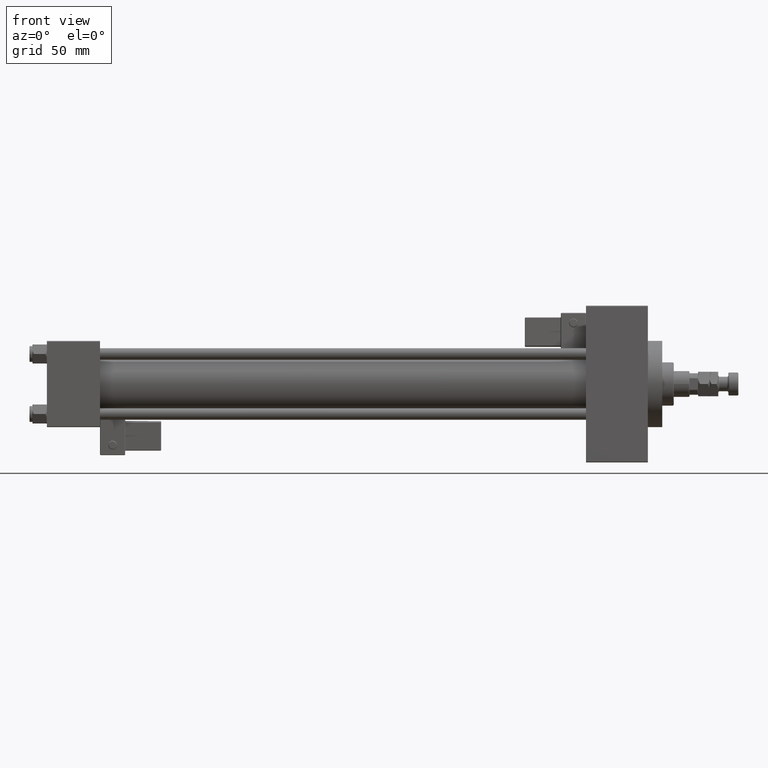
[diagram: clean part render]
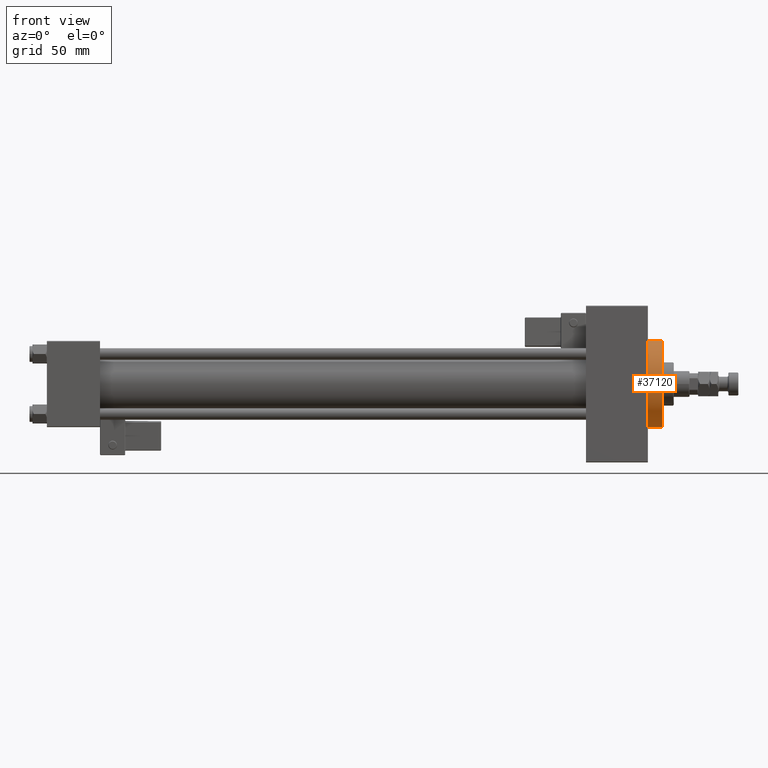
[diagram: same view with one face highlighted and labeled with its STEP entity id]
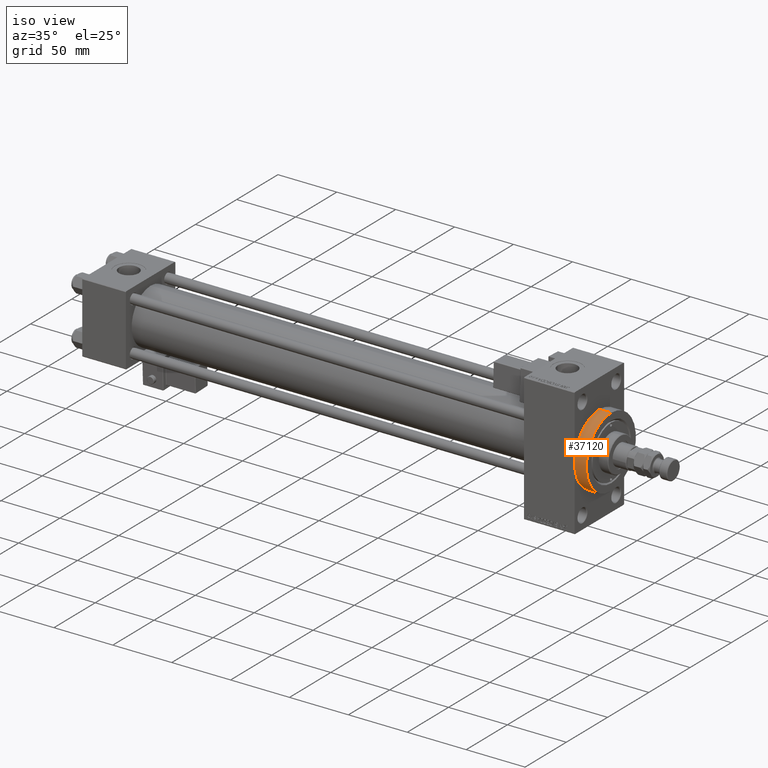
[diagram: same view with one face highlighted and labeled with its STEP entity id]
A machine part, front view. The second image highlights one B-rep face of the part: STEP entity #37120.
A second angle (iso view) of the same face is appended — the face is thin or edge-on in the first view.
In plain terms, the highlighted cylindrical surface (partial cylindrical patch) has radius 30 mm, axis along (-1, -0, -0).
Its self-contained STEP definition (entity closure, byte-faithful):
#1211 = CARTESIAN_POINT ( 'NONE',  ( 418.0000000000000000, 0.000000000000000000, 30.00000000000000000 ) ) ;
#1281 = CARTESIAN_POINT ( 'NONE',  ( 418.0000000000000000, -30.00000000000000000, 0.000000000000000000 ) ) ;
#3603 = AXIS2_PLACEMENT_3D ( 'NONE', #40804, #40288, #47810 ) ;
#4611 = CYLINDRICAL_SURFACE ( 'NONE', #20481, 30.00000000000000000 ) ;
#5269 = CIRCLE ( 'NONE', #3603, 30.00000000000000000 ) ;
#6027 = EDGE_CURVE ( 'NONE', #22058, #34653, #35540, .T. ) ;
#6370 = DIRECTION ( 'NONE',  ( 1.000000000000000000, 0.000000000000000000, 0.000000000000000000 ) ) ;
#6889 = DIRECTION ( 'NONE',  ( 0.000000000000000000, 0.000000000000000000, -1.000000000000000000 ) ) ;
#6957 = VECTOR ( 'NONE', #27839, 1000.000000000000000 ) ;
#8018 = VERTEX_POINT ( 'NONE', #1281 ) ;
#8258 = DIRECTION ( 'NONE',  ( 0.000000000000000000, 0.000000000000000000, 1.000000000000000000 ) ) ;
#8368 = ORIENTED_EDGE ( 'NONE', *, *, #45684, .T. ) ;
#10335 = ORIENTED_EDGE ( 'NONE', *, *, #6027, .F. ) ;
#13654 = VECTOR ( 'NONE', #42533, 1000.000000000000000 ) ;
#14774 = CARTESIAN_POINT ( 'NONE',  ( 428.0000000000000000, 0.000000000000000000, 30.00000000000000000 ) ) ;
#17302 = CARTESIAN_POINT ( 'NONE',  ( 428.0000000000000000, 3.673940397442059178E-15, -30.00000000000000000 ) ) ;
#18028 = CARTESIAN_POINT ( 'NONE',  ( 428.0000000000000000, 0.000000000000000000, 30.00000000000000000 ) ) ;
#19017 = AXIS2_PLACEMENT_3D ( 'NONE', #46311, #6370, #6889 ) ;
#19605 = EDGE_CURVE ( 'NONE', #34653, #21589, #28608, .T. ) ;
#19625 = EDGE_CURVE ( 'NONE', #51225, #8018, #5269, .T. ) ;
#20481 = AXIS2_PLACEMENT_3D ( 'NONE', #28745, #47945, #8258 ) ;
#20601 = AXIS2_PLACEMENT_3D ( 'NONE', #49269, #29557, #48744 ) ;
#21589 = VERTEX_POINT ( 'NONE', #36863 ) ;
#22058 = VERTEX_POINT ( 'NONE', #18028 ) ;
#24452 = CARTESIAN_POINT ( 'NONE',  ( 428.0000000000000000, 3.673940397442059178E-15, -30.00000000000000000 ) ) ;
#25466 = ORIENTED_EDGE ( 'NONE', *, *, #31663, .T. ) ;
#25988 = EDGE_LOOP ( 'NONE', ( #42323, #10335, #25466, #48433, #8368 ) ) ;
#27839 = DIRECTION ( 'NONE',  ( -1.000000000000000000, -0.000000000000000000, -0.000000000000000000 ) ) ;
#28608 = LINE ( 'NONE', #24452, #6957 ) ;
#28745 = CARTESIAN_POINT ( 'NONE',  ( 428.0000000000000000, 0.000000000000000000, 0.000000000000000000 ) ) ;
#29557 = DIRECTION ( 'NONE',  ( 1.000000000000000000, 0.000000000000000000, 0.000000000000000000 ) ) ;
#31663 = EDGE_CURVE ( 'NONE', #22058, #51225, #37875, .T. ) ;
#34653 = VERTEX_POINT ( 'NONE', #17302 ) ;
#35540 = CIRCLE ( 'NONE', #20601, 30.00000000000000000 ) ;
#36863 = CARTESIAN_POINT ( 'NONE',  ( 418.0000000000000000, 3.673940397442059178E-15, -30.00000000000000000 ) ) ;
#37120 = ADVANCED_FACE ( 'NONE', ( #40422 ), #4611, .T. ) ;
#37875 = LINE ( 'NONE', #14774, #13654 ) ;
#40288 = DIRECTION ( 'NONE',  ( 1.000000000000000000, 0.000000000000000000, 0.000000000000000000 ) ) ;
#40422 = FACE_OUTER_BOUND ( 'NONE', #25988, .T. ) ;
#40804 = CARTESIAN_POINT ( 'NONE',  ( 418.0000000000000000, 0.000000000000000000, 0.000000000000000000 ) ) ;
#41379 = CIRCLE ( 'NONE', #19017, 30.00000000000000000 ) ;
#42323 = ORIENTED_EDGE ( 'NONE', *, *, #19605, .F. ) ;
#42533 = DIRECTION ( 'NONE',  ( -1.000000000000000000, -0.000000000000000000, -0.000000000000000000 ) ) ;
#45684 = EDGE_CURVE ( 'NONE', #8018, #21589, #41379, .T. ) ;
#46311 = CARTESIAN_POINT ( 'NONE',  ( 418.0000000000000000, 0.000000000000000000, 0.000000000000000000 ) ) ;
#47810 = DIRECTION ( 'NONE',  ( 0.000000000000000000, 0.000000000000000000, -1.000000000000000000 ) ) ;
#47945 = DIRECTION ( 'NONE',  ( -1.000000000000000000, -0.000000000000000000, -0.000000000000000000 ) ) ;
#48433 = ORIENTED_EDGE ( 'NONE', *, *, #19625, .T. ) ;
#48744 = DIRECTION ( 'NONE',  ( 0.000000000000000000, 0.000000000000000000, -1.000000000000000000 ) ) ;
#49269 = CARTESIAN_POINT ( 'NONE',  ( 428.0000000000000000, 0.000000000000000000, 0.000000000000000000 ) ) ;
#51225 = VERTEX_POINT ( 'NONE', #1211 ) ;